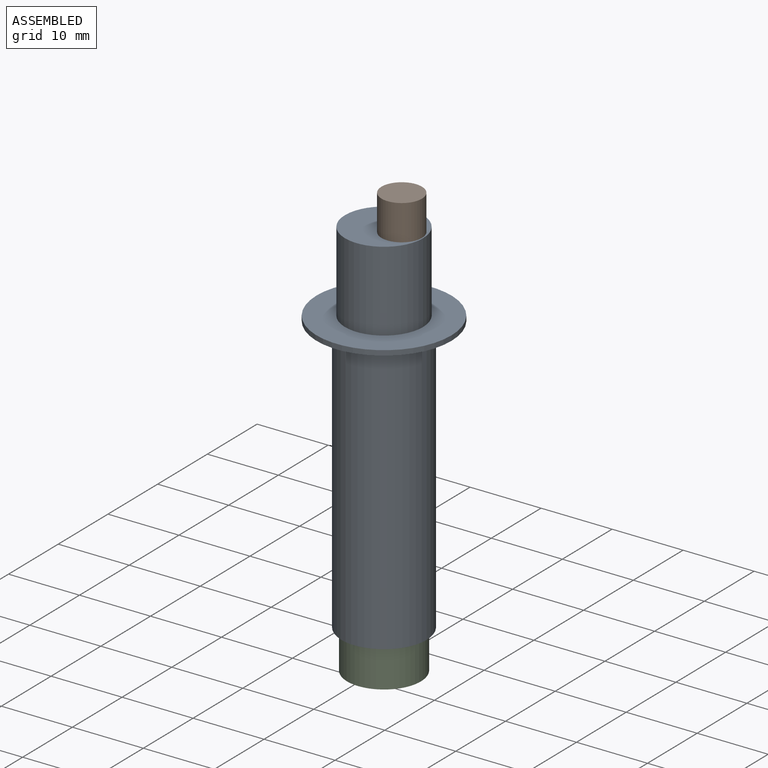
[diagram: assembled view]
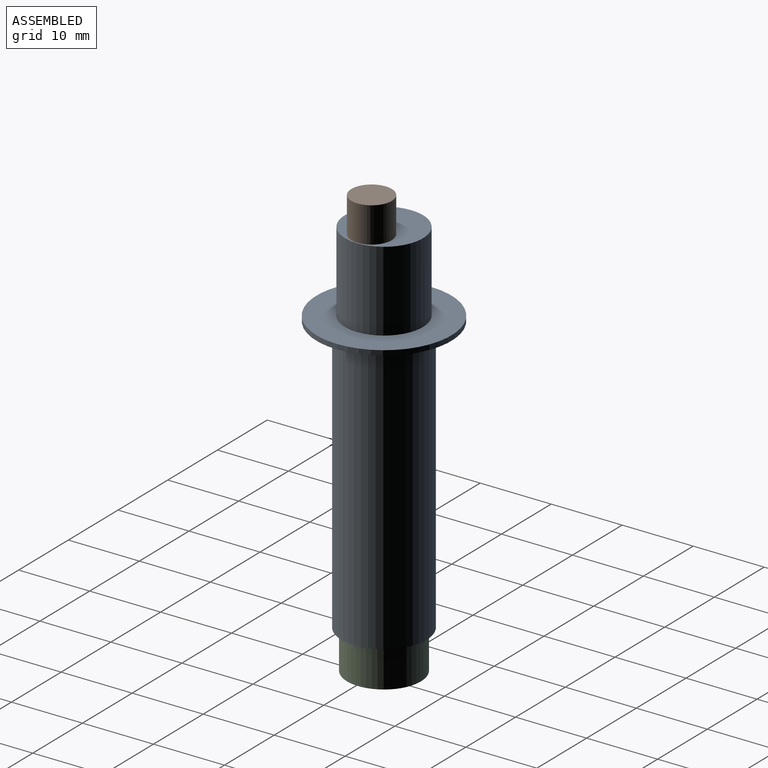
[diagram: assembled view, second angle]
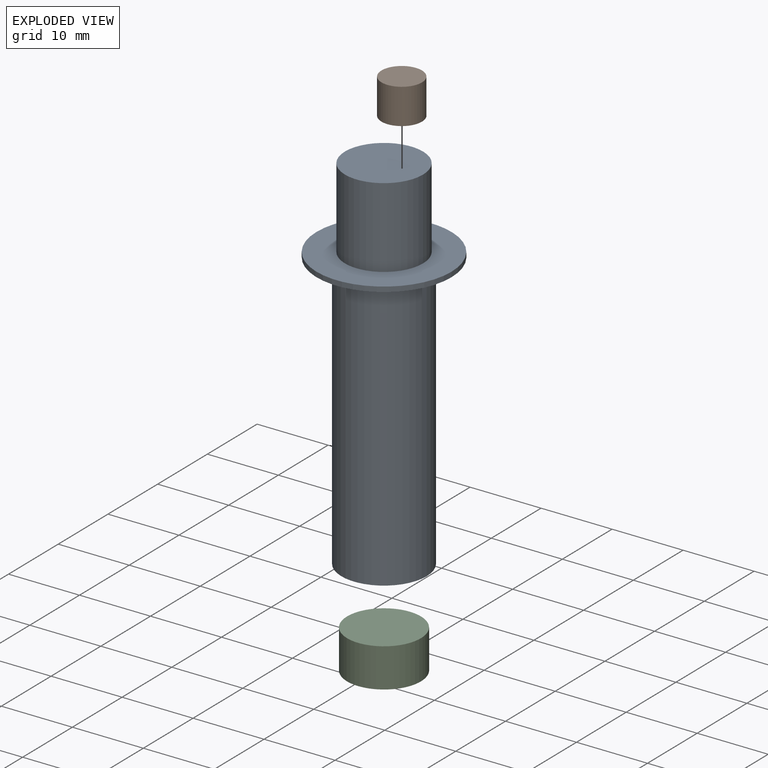
[diagram: exploded view]
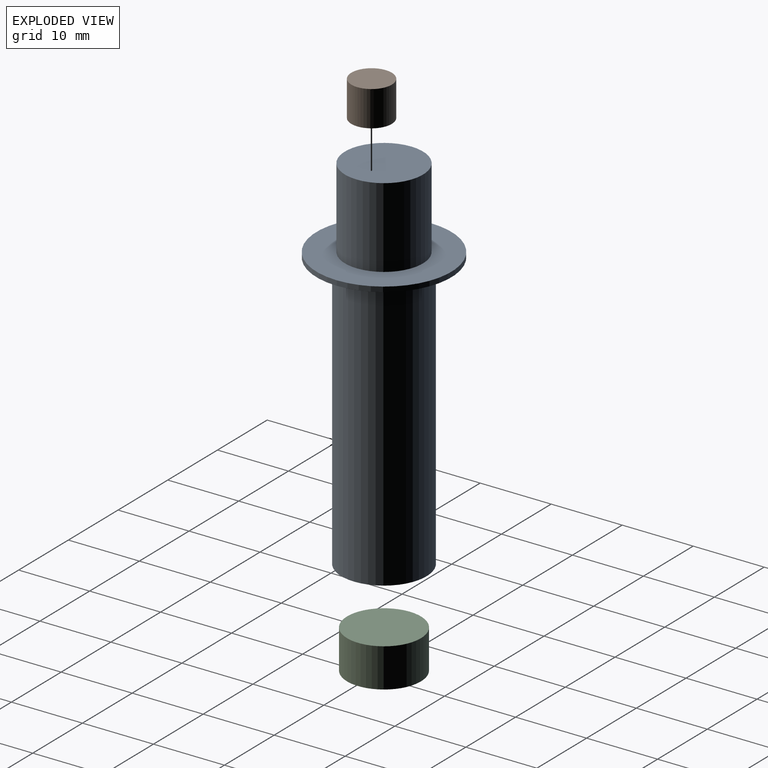
[diagram: exploded view, second angle]
ASSEMBLY  parts=3 mates=2
PART A: 7 faces, bbox 19x19x51 mm
  f0: cylinder r=6mm len=39mm, axis (0,0,-1), area 1470.3mm2, adj f1,f4
  f1: plane 12x12mm, normal (0,0,-1), area 113.1mm2, adj f0
  f2: cylinder r=9.5mm len=19mm, axis (0,0,-1), area 41.8mm2, adj f3,f4
  f3: plane 19x19mm, normal (0,0,1), area 188.5mm2, adj f2,f6
  f4: plane 19x19mm, normal (0,0,-1), area 170.4mm2, adj f0,f2
  f5: plane 11x11mm, normal (0,0,1), area 95mm2, adj f6
  f6: cylinder r=5.5mm len=11.3mm, axis (0,0,-1), area 390.5mm2, adj f3,f5
PART B: 3 faces, bbox 5.7x5.7x5 mm
  f0: cylinder r=2.85mm len=5.7mm, axis (0,0,-1), area 89.5mm2, adj f1,f2
  f1: plane 5.7x5.7mm, normal (0,0,1), area 25.5mm2, adj f0
  f2: plane 5.7x5.7mm, normal (0,0,-1), area 25.5mm2, adj f0
PART C: 3 faces, bbox 10.4x10.4x5.5 mm
  f0: cylinder r=5.2mm len=10.4mm, axis (0,0,1), area 179.7mm2, adj f1,f2
  f1: plane 10.4x10.4mm, normal (0,0,-1), area 84.9mm2, adj f0
  f2: plane 10.4x10.4mm, normal (0,0,1), area 84.9mm2, adj f0
PLACE A t=(85.95,15.63,-101.43)mm
PLACE B t=(87.82,13.06,-101.43)mm
PLACE C t=(85.95,15.63,-101.43)mm
MATE fastened B.f0 <-> A.f5  axis (0,0,-1) through (88.45,15.63,-50.43)mm
MATE fastened A.f0 <-> C.f0  axis (0,0,-1) through (85.95,15.63,-101.43)mm
